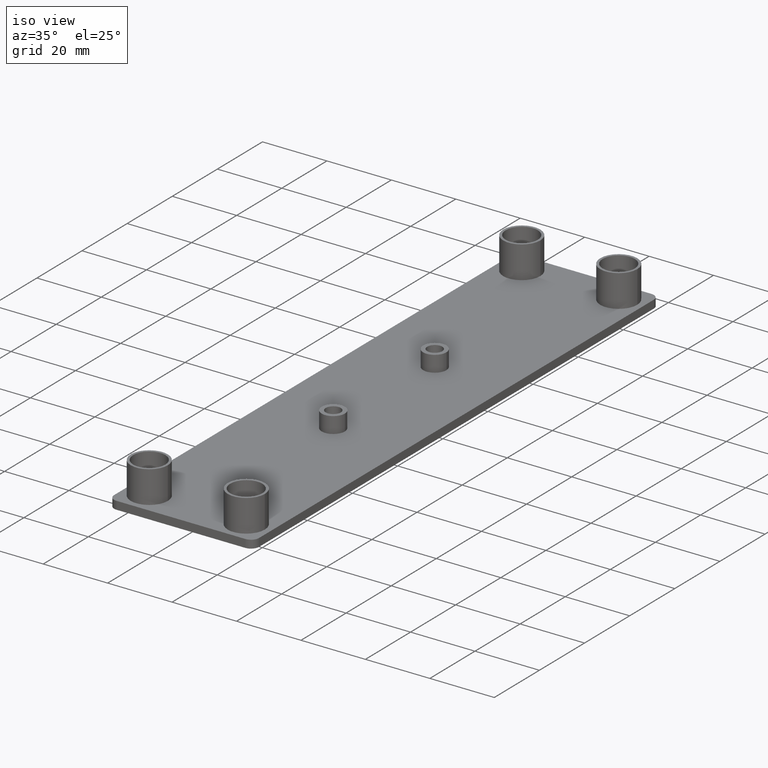
[diagram: clean part render]
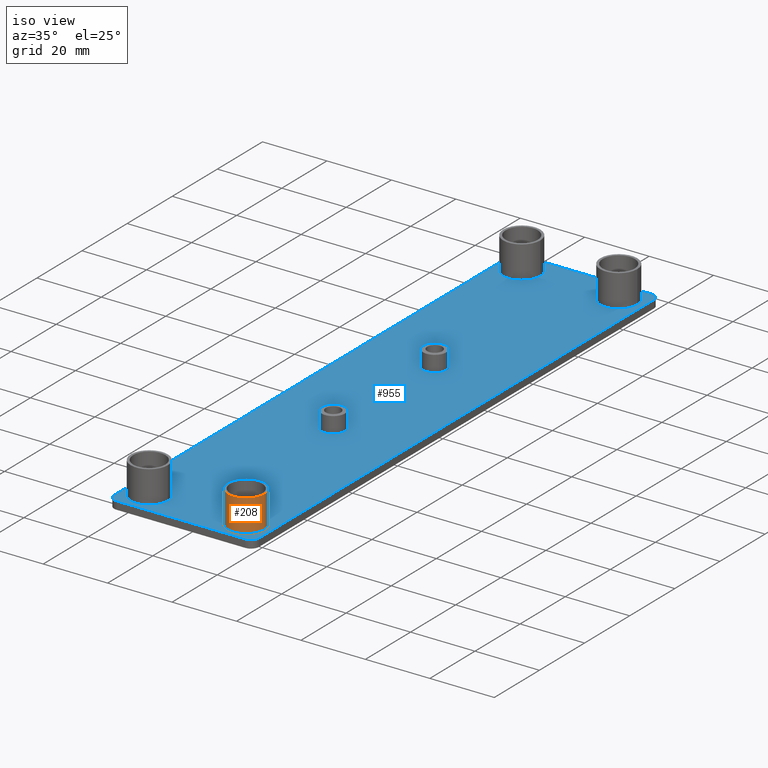
[diagram: same view with the hole feature highlighted: cylindrical wall and planar end face, labeled with their STEP entity ids]
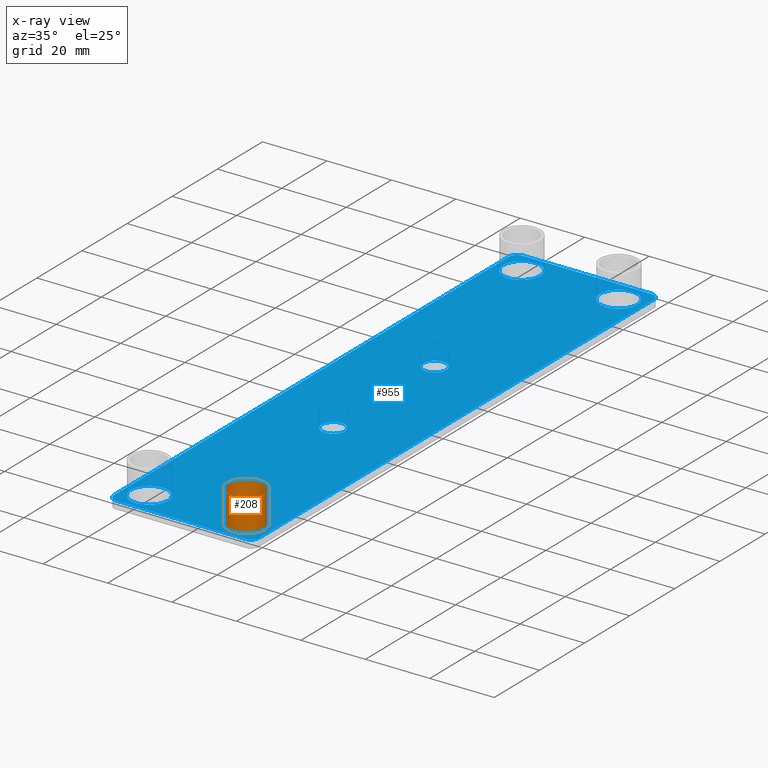
[diagram: x-ray of the same camera — body ghosted, the hole faces saturated]
A machine part, iso view. The highlighted faces form one hole feature of diameter 11.5 mm: the cylindrical wall (entity #208, orange) and its adjacent planar end face (entity #955, blue) — they share a circular edge in the B-rep.
The next image is the same camera in x-ray (body ghosted, the hole faces saturated) — the bore reads through the body.
Wall:
#158=CARTESIAN_POINT('',(15.049980999943728,-60.050044999759848,0.0));
#159=DIRECTION('',(0.0,0.0,1.0));
#160=DIRECTION('',(1.0,0.0,0.0));
#161=AXIS2_PLACEMENT_3D('',#158,#159,#160);
#162=CYLINDRICAL_SURFACE('',#161,5.749999999977001);
#163=CARTESIAN_POINT('',(9.299980999966728,-60.050044999759848,10.0));
#164=VERTEX_POINT('',#163);
#165=CARTESIAN_POINT('',(20.799980999920535,-60.050044999759848,10.0));
#166=VERTEX_POINT('',#165);
#167=CARTESIAN_POINT('',(15.049980999943728,-60.050044999759848,10.0));
#168=DIRECTION('',(0.0,0.0,1.0));
#169=DIRECTION('',(1.0,0.0,0.0));
#170=AXIS2_PLACEMENT_3D('',#167,#168,#169);
#171=CIRCLE('',#170,5.749999999977001);
#172=EDGE_CURVE('',#164,#166,#171,.T.);
#173=ORIENTED_EDGE('',*,*,#172,.F.);
#174=CARTESIAN_POINT('',(15.049980999943728,-60.050044999759848,10.0));
#175=DIRECTION('',(0.0,0.0,1.0));
#176=DIRECTION('',(1.0,0.0,0.0));
#177=AXIS2_PLACEMENT_3D('',#174,#175,#176);
#178=CIRCLE('',#177,5.749999999977001);
#179=EDGE_CURVE('',#166,#164,#178,.T.);
#180=ORIENTED_EDGE('',*,*,#179,.F.);
#181=CARTESIAN_POINT('',(20.799980999920535,-60.050044999759848,0.0));
#182=VERTEX_POINT('',#181);
#183=CARTESIAN_POINT('',(20.799980999920535,-60.050044999759848,0.0));
#184=DIRECTION('',(0.0,0.0,1.0));
#185=VECTOR('',#184,10.0);
#186=LINE('',#183,#185);
#187=EDGE_CURVE('',#182,#166,#186,.T.);
#188=ORIENTED_EDGE('',*,*,#187,.F.);
#189=CARTESIAN_POINT('',(9.299980999966728,-60.050044999759848,0.0));
#190=VERTEX_POINT('',#189);
#191=CARTESIAN_POINT('',(15.049980999943728,-60.050044999759848,0.0));
#192=DIRECTION('',(0.0,0.0,1.0));
#193=DIRECTION('',(1.0,0.0,0.0));
#194=AXIS2_PLACEMENT_3D('',#191,#192,#193);
#195=CIRCLE('',#194,5.749999999977001);
#196=EDGE_CURVE('',#182,#190,#195,.T.);
#197=ORIENTED_EDGE('',*,*,#196,.T.);
#198=CARTESIAN_POINT('',(15.049980999943728,-60.050044999759848,0.0));
#199=DIRECTION('',(0.0,0.0,1.0));
#200=DIRECTION('',(1.0,0.0,0.0));
#201=AXIS2_PLACEMENT_3D('',#198,#199,#200);
#202=CIRCLE('',#201,5.749999999977001);
#203=EDGE_CURVE('',#190,#182,#202,.T.);
#204=ORIENTED_EDGE('',*,*,#203,.T.);
#205=ORIENTED_EDGE('',*,*,#187,.T.);
#206=EDGE_LOOP('',(#173,#180,#188,#197,#204,#205));
#207=FACE_OUTER_BOUND('',#206,.T.);
#208=ADVANCED_FACE('',(#207),#162,.T.);
End face:
#181=CARTESIAN_POINT('',(20.799980999920535,-60.050044999759848,0.0));
#182=VERTEX_POINT('',#181);
#189=CARTESIAN_POINT('',(9.299980999966728,-60.050044999759848,0.0));
#190=VERTEX_POINT('',#189);
#191=CARTESIAN_POINT('',(15.049980999943728,-60.050044999759848,0.0));
#192=DIRECTION('',(0.0,0.0,1.0));
#193=DIRECTION('',(1.0,0.0,0.0));
#194=AXIS2_PLACEMENT_3D('',#191,#192,#193);
#195=CIRCLE('',#194,5.749999999977001);
#196=EDGE_CURVE('',#182,#190,#195,.T.);
#198=CARTESIAN_POINT('',(15.049980999943728,-60.050044999759848,0.0));
#199=DIRECTION('',(0.0,0.0,1.0));
#200=DIRECTION('',(1.0,0.0,0.0));
#201=AXIS2_PLACEMENT_3D('',#198,#199,#200);
#202=CIRCLE('',#201,5.749999999977001);
#203=EDGE_CURVE('',#190,#182,#202,.T.);
#281=CARTESIAN_POINT('',(-9.300018999959320,-60.050044999759848,0.0));
#282=VERTEX_POINT('',#281);
#289=CARTESIAN_POINT('',(-20.800018999913128,-60.050044999759848,0.0));
#290=VERTEX_POINT('',#289);
#291=CARTESIAN_POINT('',(-15.050018999936128,-60.050044999759848,0.0));
#292=DIRECTION('',(0.0,0.0,1.0));
#293=DIRECTION('',(1.0,0.0,0.0));
#294=AXIS2_PLACEMENT_3D('',#291,#292,#293);
#295=CIRCLE('',#294,5.749999999977001);
#296=EDGE_CURVE('',#282,#290,#295,.T.);
#298=CARTESIAN_POINT('',(-15.050018999936128,-60.050044999759848,0.0));
#299=DIRECTION('',(0.0,0.0,1.0));
#300=DIRECTION('',(1.0,0.0,0.0));
#301=AXIS2_PLACEMENT_3D('',#298,#299,#300);
#302=CIRCLE('',#301,5.749999999977001);
#303=EDGE_CURVE('',#290,#282,#302,.T.);
#381=CARTESIAN_POINT('',(3.599999999985812,0.0,0.0));
#382=VERTEX_POINT('',#381);
#389=CARTESIAN_POINT('',(-3.599999999985601,0.0,0.0));
#390=VERTEX_POINT('',#389);
#391=CARTESIAN_POINT('',(0.0,0.0,0.0));
#392=DIRECTION('',(0.0,0.0,1.0));
#393=DIRECTION('',(1.0,0.0,0.0));
#394=AXIS2_PLACEMENT_3D('',#391,#392,#393);
#395=CIRCLE('',#394,3.599999999985601);
#396=EDGE_CURVE('',#382,#390,#395,.T.);
#398=CARTESIAN_POINT('',(0.0,0.0,0.0));
#399=DIRECTION('',(0.0,0.0,1.0));
#400=DIRECTION('',(1.0,0.0,0.0));
#401=AXIS2_PLACEMENT_3D('',#398,#399,#400);
#402=CIRCLE('',#401,3.599999999985601);
#403=EDGE_CURVE('',#390,#382,#402,.T.);
#481=CARTESIAN_POINT('',(3.599999999985812,44.999999999819920,0.0));
#482=VERTEX_POINT('',#481);
#489=CARTESIAN_POINT('',(-3.599999999985601,44.999999999819920,0.0));
#490=VERTEX_POINT('',#489);
#491=CARTESIAN_POINT('',(0.0,44.999999999819920,0.0));
#492=DIRECTION('',(0.0,0.0,1.0));
#493=DIRECTION('',(1.0,0.0,0.0));
#494=AXIS2_PLACEMENT_3D('',#491,#492,#493);
#495=CIRCLE('',#494,3.599999999985601);
#496=EDGE_CURVE('',#482,#490,#495,.T.);
#498=CARTESIAN_POINT('',(0.0,44.999999999819920,0.0));
#499=DIRECTION('',(0.0,0.0,1.0));
#500=DIRECTION('',(1.0,0.0,0.0));
#501=AXIS2_PLACEMENT_3D('',#498,#499,#500);
#502=CIRCLE('',#501,3.599999999985601);
#503=EDGE_CURVE('',#490,#482,#502,.T.);
#581=CARTESIAN_POINT('',(-9.300021999963064,105.050044999579770,0.0));
#582=VERTEX_POINT('',#581);
#589=CARTESIAN_POINT('',(-20.800021999916872,105.050044999579770,0.0));
#590=VERTEX_POINT('',#589);
#591=CARTESIAN_POINT('',(-15.050021999939872,105.050044999579770,0.0));
#592=DIRECTION('',(0.0,0.0,1.0));
#593=DIRECTION('',(1.0,0.0,0.0));
#594=AXIS2_PLACEMENT_3D('',#591,#592,#593);
#595=CIRCLE('',#594,5.749999999977001);
#596=EDGE_CURVE('',#582,#590,#595,.T.);
#598=CARTESIAN_POINT('',(-15.050021999939872,105.050044999579770,0.0));
#599=DIRECTION('',(0.0,0.0,1.0));
#600=DIRECTION('',(1.0,0.0,0.0));
#601=AXIS2_PLACEMENT_3D('',#598,#599,#600);
#602=CIRCLE('',#601,5.749999999977001);
#603=EDGE_CURVE('',#590,#582,#602,.T.);
#681=CARTESIAN_POINT('',(20.799977999916337,105.049999999579540,0.0));
#682=VERTEX_POINT('',#681);
#689=CARTESIAN_POINT('',(9.299977999962529,105.049999999579540,0.0));
#690=VERTEX_POINT('',#689);
#691=CARTESIAN_POINT('',(15.049977999939529,105.049999999579540,0.0));
#692=DIRECTION('',(0.0,0.0,1.0));
#693=DIRECTION('',(1.0,0.0,0.0));
#694=AXIS2_PLACEMENT_3D('',#691,#692,#693);
#695=CIRCLE('',#694,5.749999999977001);
#696=EDGE_CURVE('',#682,#690,#695,.T.);
#698=CARTESIAN_POINT('',(15.049977999939529,105.049999999579540,0.0));
#699=DIRECTION('',(0.0,0.0,1.0));
#700=DIRECTION('',(1.0,0.0,0.0));
#701=AXIS2_PLACEMENT_3D('',#698,#699,#700);
#702=CIRCLE('',#701,5.749999999977001);
#703=EDGE_CURVE('',#690,#682,#702,.T.);
#839=CARTESIAN_POINT('',(-19.999973999906160,-67.500000999730219,0.0));
#840=VERTEX_POINT('',#839);
#841=CARTESIAN_POINT('',(-22.499973999906160,-65.000000999730219,0.0));
#842=VERTEX_POINT('',#841);
#843=CARTESIAN_POINT('',(-19.999973999906160,-65.000000999730219,0.0));
#844=DIRECTION('',(0.0,0.0,-1.0));
#845=DIRECTION('',(0.0,-1.0,0.0));
#846=AXIS2_PLACEMENT_3D('',#843,#844,#845);
#847=CIRCLE('',#846,2.500000000000000);
#848=EDGE_CURVE('',#840,#842,#847,.T.);
#866=CARTESIAN_POINT('',(-27.000009683665212,-85.500041855611016,0.0));
#867=DIRECTION('',(0.0,0.0,1.0));
#868=DIRECTION('',(1.0,0.0,0.0));
#869=AXIS2_PLACEMENT_3D('',#866,#867,#868);
#870=PLANE('',#869);
#871=CARTESIAN_POINT('',(19.999979999913648,112.499999999549800,0.0));
#872=VERTEX_POINT('',#871);
#873=CARTESIAN_POINT('',(-19.999973999906160,112.499999999549800,0.0));
#874=VERTEX_POINT('',#873);
#875=CARTESIAN_POINT('',(19.999979999913648,112.499999999549800,0.0));
#876=DIRECTION('',(-1.0,0.0,0.0));
#877=VECTOR('',#876,39.999953999819809);
#878=LINE('',#875,#877);
#879=EDGE_CURVE('',#872,#874,#878,.T.);
#880=ORIENTED_EDGE('',*,*,#879,.T.);
#881=CARTESIAN_POINT('',(-22.499973999906160,109.999999999549800,0.0));
#882=VERTEX_POINT('',#881);
#883=CARTESIAN_POINT('',(-19.999973999906160,109.999999999549800,0.0));
#884=DIRECTION('',(0.0,0.0,-1.0));
#885=DIRECTION('',(-1.0,0.0,0.0));
#886=AXIS2_PLACEMENT_3D('',#883,#884,#885);
#887=CIRCLE('',#886,2.500000000000000);
#888=EDGE_CURVE('',#882,#874,#887,.T.);
#889=ORIENTED_EDGE('',*,*,#888,.F.);
#890=CARTESIAN_POINT('',(-22.499973999906160,109.999999999549800,0.0));
#891=DIRECTION('',(0.0,-1.0,0.0));
#892=VECTOR('',#891,175.000000999280020);
#893=LINE('',#890,#892);
#894=EDGE_CURVE('',#882,#842,#893,.T.);
#895=ORIENTED_EDGE('',*,*,#894,.T.);
#896=ORIENTED_EDGE('',*,*,#848,.F.);
#897=CARTESIAN_POINT('',(19.999979999913648,-67.500000999730219,0.0));
#898=VERTEX_POINT('',#897);
#899=CARTESIAN_POINT('',(-19.999973999906160,-67.500000999730219,0.0));
#900=DIRECTION('',(1.0,0.0,0.0));
#901=VECTOR('',#900,39.999953999819809);
#902=LINE('',#899,#901);
#903=EDGE_CURVE('',#840,#898,#902,.T.);
#904=ORIENTED_EDGE('',*,*,#903,.T.);
#905=CARTESIAN_POINT('',(22.499979999913648,-65.000000999730219,0.0));
#906=VERTEX_POINT('',#905);
#907=CARTESIAN_POINT('',(19.999979999913648,-65.000000999730219,0.0));
#908=DIRECTION('',(0.0,0.0,-1.0));
#909=DIRECTION('',(1.0,0.0,0.0));
#910=AXIS2_PLACEMENT_3D('',#907,#908,#909);
#911=CIRCLE('',#910,2.500000000000000);
#912=EDGE_CURVE('',#906,#898,#911,.T.);
#913=ORIENTED_EDGE('',*,*,#912,.F.);
#914=CARTESIAN_POINT('',(22.499979999913648,109.999999999549800,0.0));
#915=VERTEX_POINT('',#914);
#916=CARTESIAN_POINT('',(22.499979999913648,-65.000000999730219,0.0));
#917=DIRECTION('',(0.0,1.0,0.0));
#918=VECTOR('',#917,175.000000999280020);
#919=LINE('',#916,#918);
#920=EDGE_CURVE('',#906,#915,#919,.T.);
#921=ORIENTED_EDGE('',*,*,#920,.T.);
#922=CARTESIAN_POINT('',(19.999979999913648,109.999999999549800,0.0));
#923=DIRECTION('',(0.0,0.0,-1.0));
#924=DIRECTION('',(0.0,1.0,0.0));
#925=AXIS2_PLACEMENT_3D('',#922,#923,#924);
#926=CIRCLE('',#925,2.500000000000000);
#927=EDGE_CURVE('',#872,#915,#926,.T.);
#928=ORIENTED_EDGE('',*,*,#927,.F.);
#929=EDGE_LOOP('',(#880,#889,#895,#896,#904,#913,#921,#928));
#930=FACE_OUTER_BOUND('',#929,.T.);
#931=ORIENTED_EDGE('',*,*,#203,.F.);
#932=ORIENTED_EDGE('',*,*,#196,.F.);
#933=EDGE_LOOP('',(#931,#932));
#934=FACE_BOUND('',#933,.T.);
#935=ORIENTED_EDGE('',*,*,#303,.F.);
#936=ORIENTED_EDGE('',*,*,#296,.F.);
#937=EDGE_LOOP('',(#935,#936));
#938=FACE_BOUND('',#937,.T.);
#939=ORIENTED_EDGE('',*,*,#403,.F.);
#940=ORIENTED_EDGE('',*,*,#396,.F.);
#941=EDGE_LOOP('',(#939,#940));
#942=FACE_BOUND('',#941,.T.);
#943=ORIENTED_EDGE('',*,*,#503,.F.);
#944=ORIENTED_EDGE('',*,*,#496,.F.);
#945=EDGE_LOOP('',(#943,#944));
#946=FACE_BOUND('',#945,.T.);
#947=ORIENTED_EDGE('',*,*,#603,.F.);
#948=ORIENTED_EDGE('',*,*,#596,.F.);
#949=EDGE_LOOP('',(#947,#948));
#950=FACE_BOUND('',#949,.T.);
#951=ORIENTED_EDGE('',*,*,#703,.F.);
#952=ORIENTED_EDGE('',*,*,#696,.F.);
#953=EDGE_LOOP('',(#951,#952));
#954=FACE_BOUND('',#953,.T.);
#955=ADVANCED_FACE('',(#930,#934,#938,#942,#946,#950,#954),#870,.T.);